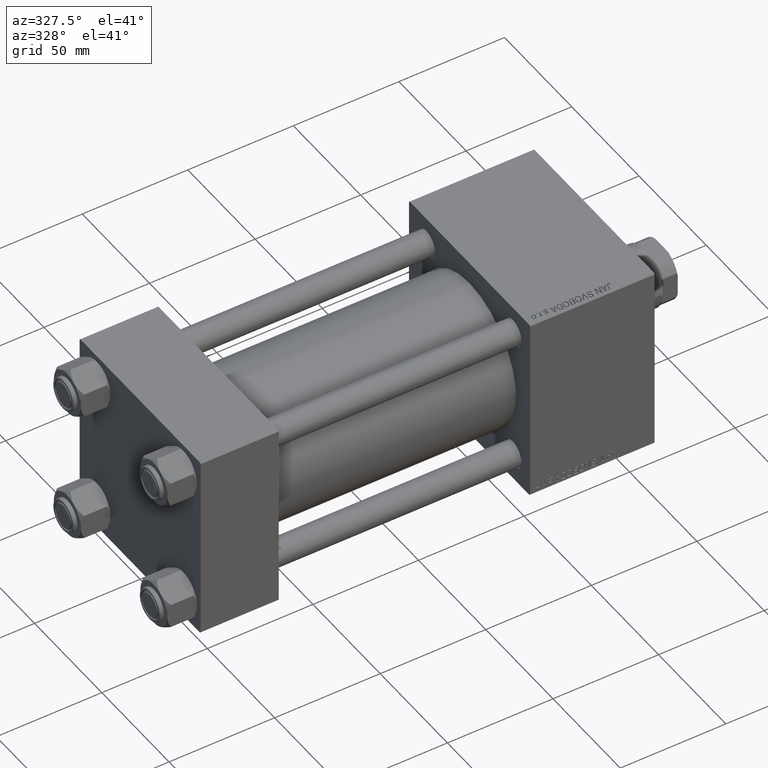
[diagram: clean part render]
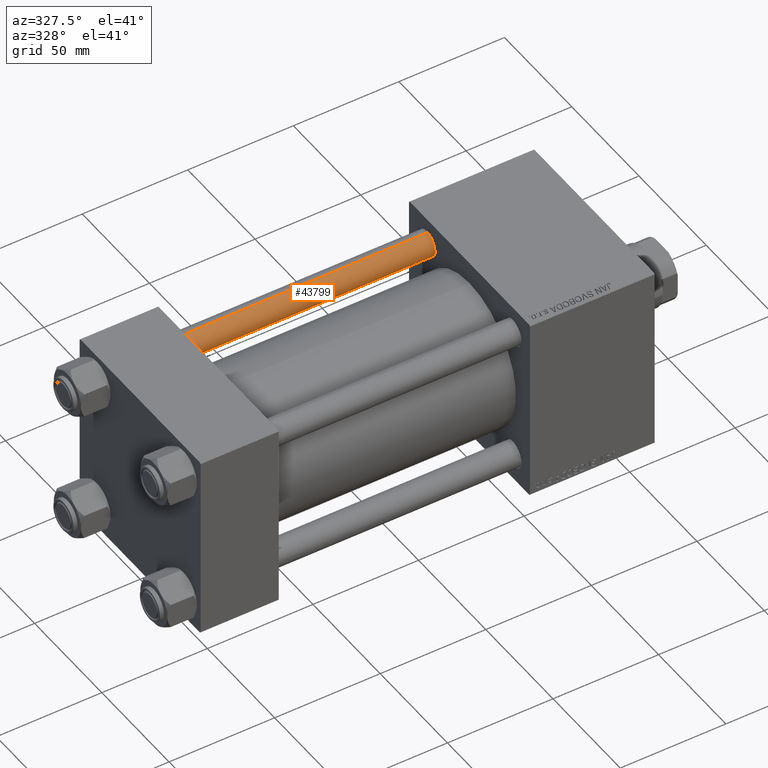
[diagram: same view with one face highlighted and labeled with its STEP entity id]
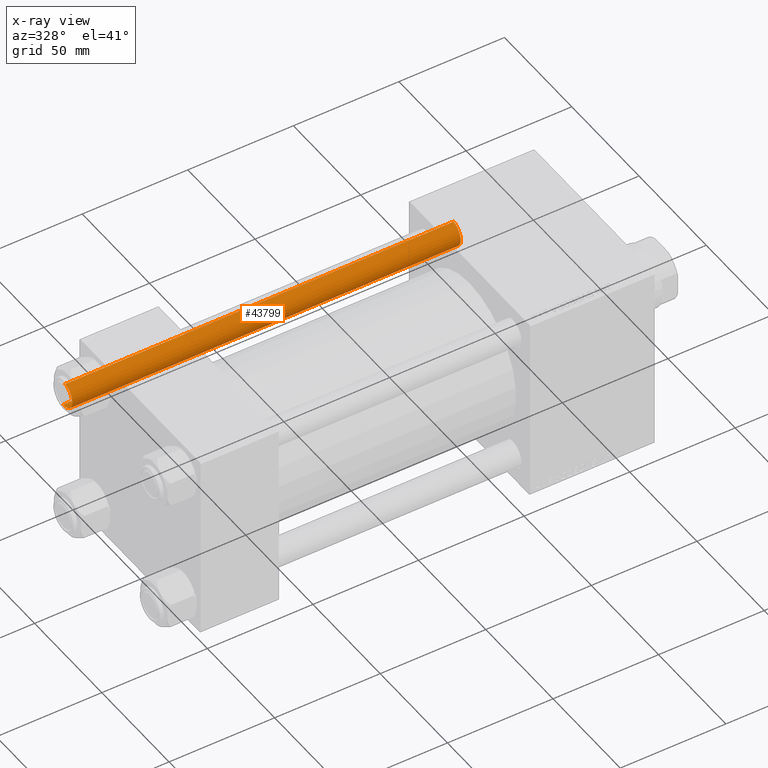
[diagram: x-ray of the same camera — body ghosted, the highlighted face saturated]
A machine part, auxiliary view. The second image highlights one B-rep face of the part: STEP entity #43799.
The next image is the same camera in x-ray: the body ghosted, the highlighted face saturated — about 0% of this face is hidden behind the body in this view.
In plain terms, the highlighted cylindrical surface (edge-blend (fillet) strip) has radius 6 mm, axis along (-1, 0, 0).
Its self-contained STEP definition (entity closure, byte-faithful):
#222 = LINE ( 'NONE', #16877, #32543 ) ;
#1067 = CARTESIAN_POINT ( 'NONE',  ( 0.000000000000000000, 0.000000000000000000, 185.0000000000000000 ) ) ;
#2890 = DIRECTION ( 'NONE',  ( 1.000000000000000000, 0.000000000000000000, 0.000000000000000000 ) ) ;
#7729 = CARTESIAN_POINT ( 'NONE',  ( -6.000000000000000888, 0.000000000000000000, 184.5000000000000000 ) ) ;
#8842 = EDGE_CURVE ( 'NONE', #49505, #26444, #37602, .T. ) ;
#9121 = EDGE_CURVE ( 'NONE', #49505, #20843, #50366, .T. ) ;
#12332 = ORIENTED_EDGE ( 'NONE', *, *, #44037, .T. ) ;
#12596 = AXIS2_PLACEMENT_3D ( 'NONE', #1067, #39817, #28361 ) ;
#14776 = CARTESIAN_POINT ( 'NONE',  ( 6.000000000000000888, 7.347880794884120722E-16, 185.0000000000000000 ) ) ;
#16877 = CARTESIAN_POINT ( 'NONE',  ( -6.000000000000000888, 0.000000000000000000, 185.0000000000000000 ) ) ;
#17605 = DIRECTION ( 'NONE',  ( 0.000000000000000000, 0.000000000000000000, -1.000000000000000000 ) ) ;
#20249 = DIRECTION ( 'NONE',  ( -0.000000000000000000, -0.000000000000000000, -1.000000000000000000 ) ) ;
#20843 = VERTEX_POINT ( 'NONE', #42135 ) ;
#21489 = DIRECTION ( 'NONE',  ( 1.000000000000000000, 0.000000000000000000, 0.000000000000000000 ) ) ;
#21891 = DIRECTION ( 'NONE',  ( -0.000000000000000000, -0.000000000000000000, 1.000000000000000000 ) ) ;
#22427 = CARTESIAN_POINT ( 'NONE',  ( 6.000000000000000888, 7.347880794884120722E-16, 184.5000000000000000 ) ) ;
#23550 = DIRECTION ( 'NONE',  ( -0.000000000000000000, -0.000000000000000000, -1.000000000000000000 ) ) ;
#24079 = ORIENTED_EDGE ( 'NONE', *, *, #9121, .F. ) ;
#26128 = AXIS2_PLACEMENT_3D ( 'NONE', #42404, #21891, #2890 ) ;
#26444 = VERTEX_POINT ( 'NONE', #7729 ) ;
#28361 = DIRECTION ( 'NONE',  ( -1.000000000000000000, 0.000000000000000000, 0.000000000000000000 ) ) ;
#32543 = VECTOR ( 'NONE', #20249, 1000.000000000000000 ) ;
#34487 = ORIENTED_EDGE ( 'NONE', *, *, #8842, .T. ) ;
#36698 = FACE_OUTER_BOUND ( 'NONE', #51219, .T. ) ;
#37602 = CIRCLE ( 'NONE', #50036, 6.000000000000000888 ) ;
#37764 = CIRCLE ( 'NONE', #26128, 6.000000000000000888 ) ;
#38109 = CARTESIAN_POINT ( 'NONE',  ( 0.000000000000000000, 0.000000000000000000, 184.5000000000000000 ) ) ;
#39817 = DIRECTION ( 'NONE',  ( -0.000000000000000000, -0.000000000000000000, -1.000000000000000000 ) ) ;
#40082 = CYLINDRICAL_SURFACE ( 'NONE', #12596, 6.000000000000000888 ) ;
#40159 = VERTEX_POINT ( 'NONE', #48956 ) ;
#42135 = CARTESIAN_POINT ( 'NONE',  ( 6.000000000000000888, 7.347880794884120722E-16, 0.5000000000000281997 ) ) ;
#42404 = CARTESIAN_POINT ( 'NONE',  ( 0.000000000000000000, 0.000000000000000000, 0.5000000000000281997 ) ) ;
#43799 = ADVANCED_FACE ( 'NONE', ( #36698 ), #40082, .T. ) ;
#44037 = EDGE_CURVE ( 'NONE', #26444, #40159, #222, .T. ) ;
#47184 = EDGE_CURVE ( 'NONE', #40159, #20843, #37764, .T. ) ;
#48956 = CARTESIAN_POINT ( 'NONE',  ( -6.000000000000000888, 0.000000000000000000, 0.5000000000000281997 ) ) ;
#49231 = VECTOR ( 'NONE', #23550, 1000.000000000000000 ) ;
#49505 = VERTEX_POINT ( 'NONE', #22427 ) ;
#49695 = ORIENTED_EDGE ( 'NONE', *, *, #47184, .T. ) ;
#50036 = AXIS2_PLACEMENT_3D ( 'NONE', #38109, #17605, #21489 ) ;
#50366 = LINE ( 'NONE', #14776, #49231 ) ;
#51219 = EDGE_LOOP ( 'NONE', ( #24079, #34487, #12332, #49695 ) ) ;